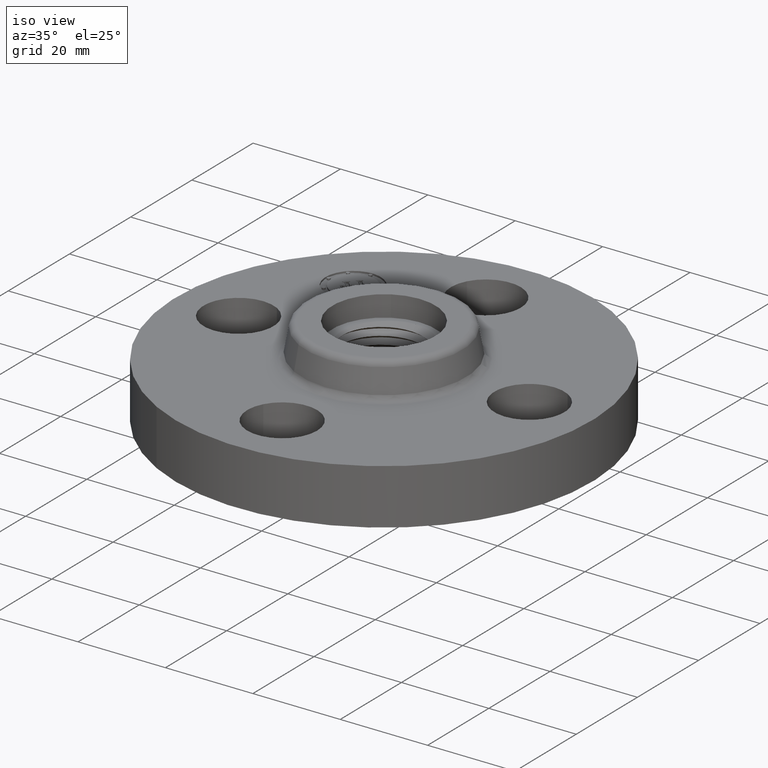
[diagram: clean part render]
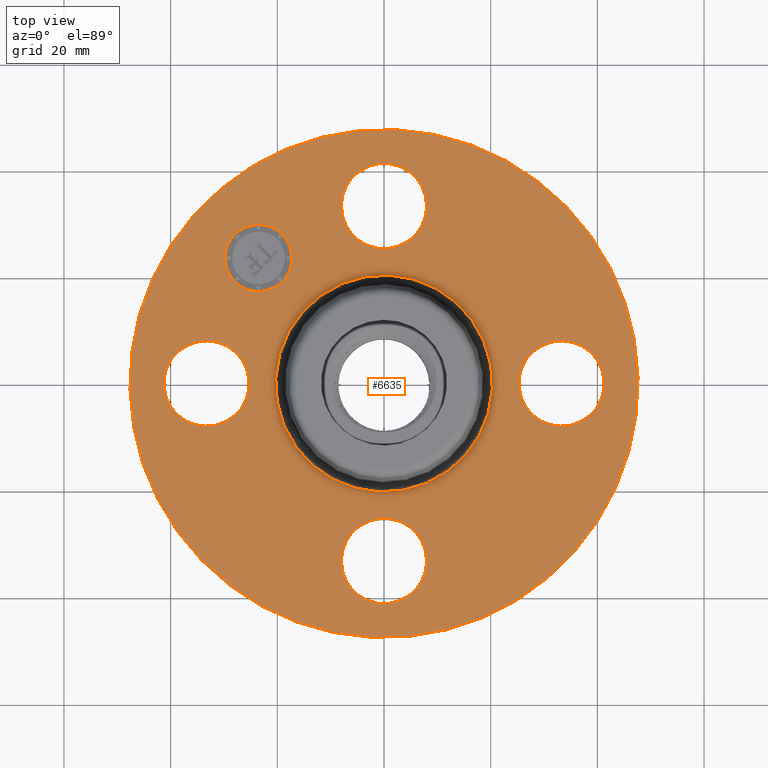
[diagram: tour spotlight — one face highlighted and labeled with its STEP entity id]
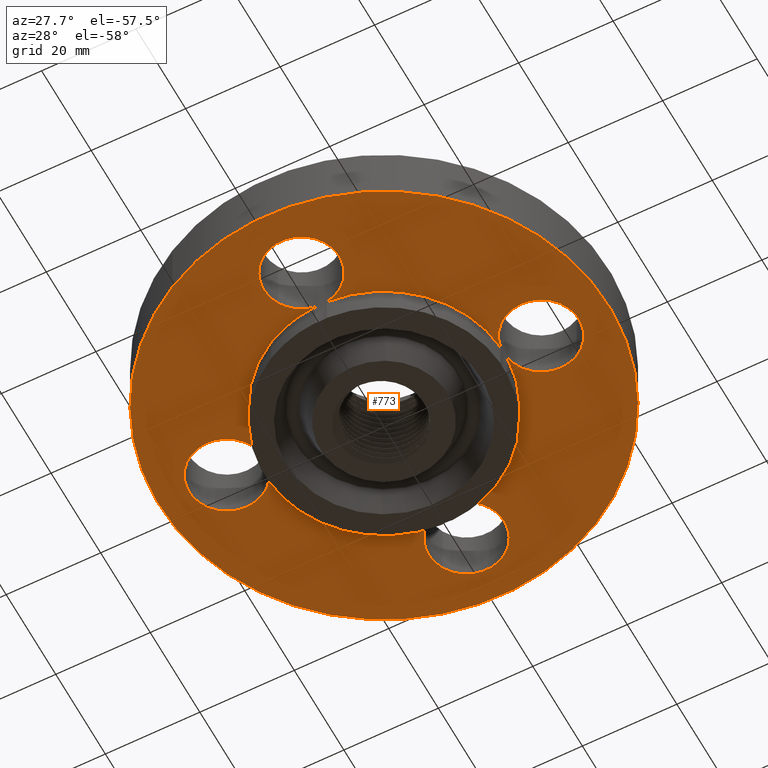
[diagram: tour spotlight — one face highlighted and labeled with its STEP entity id]
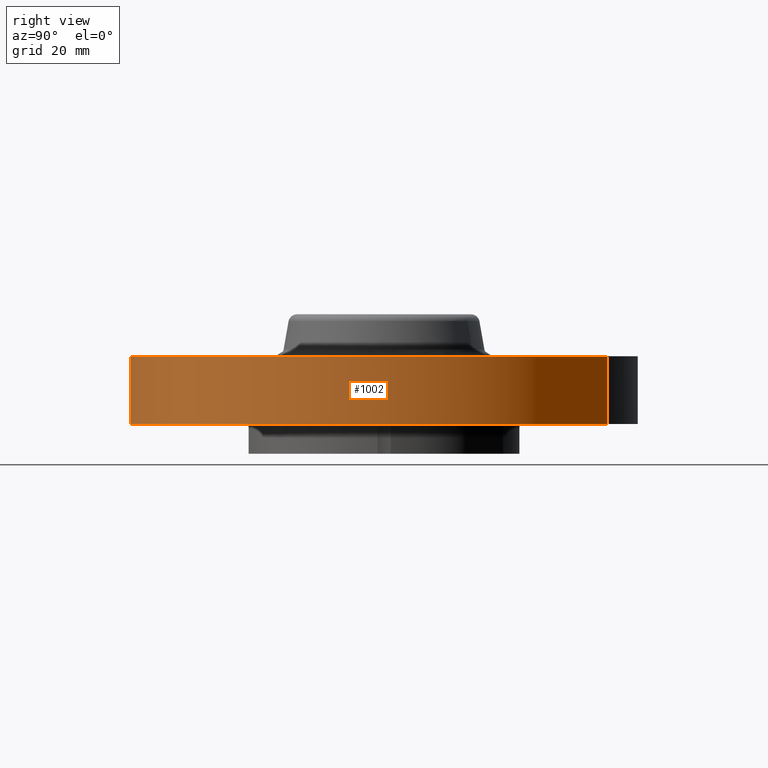
[diagram: tour spotlight — one face highlighted and labeled with its STEP entity id]
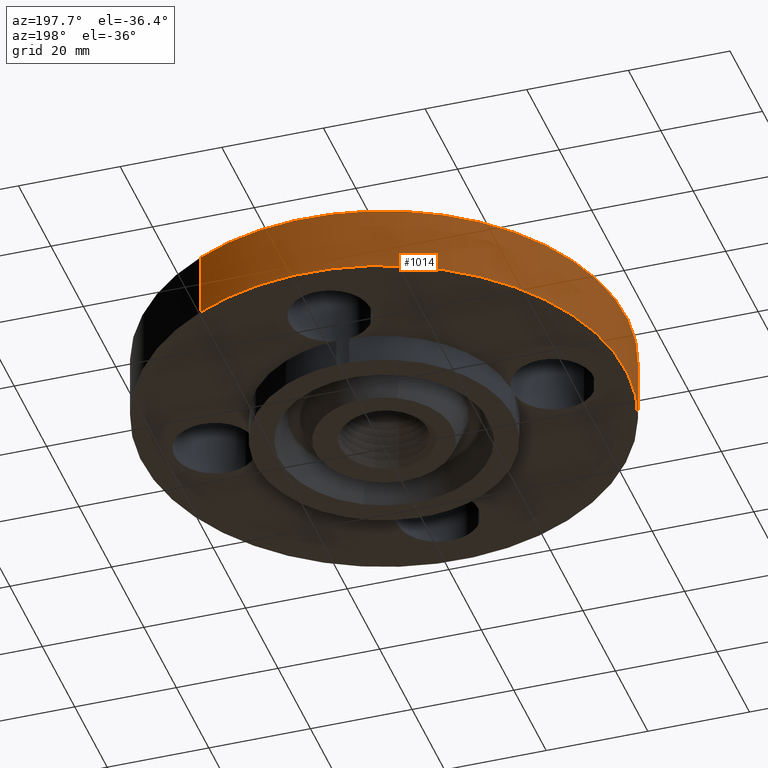
[diagram: tour spotlight — one face highlighted and labeled with its STEP entity id]
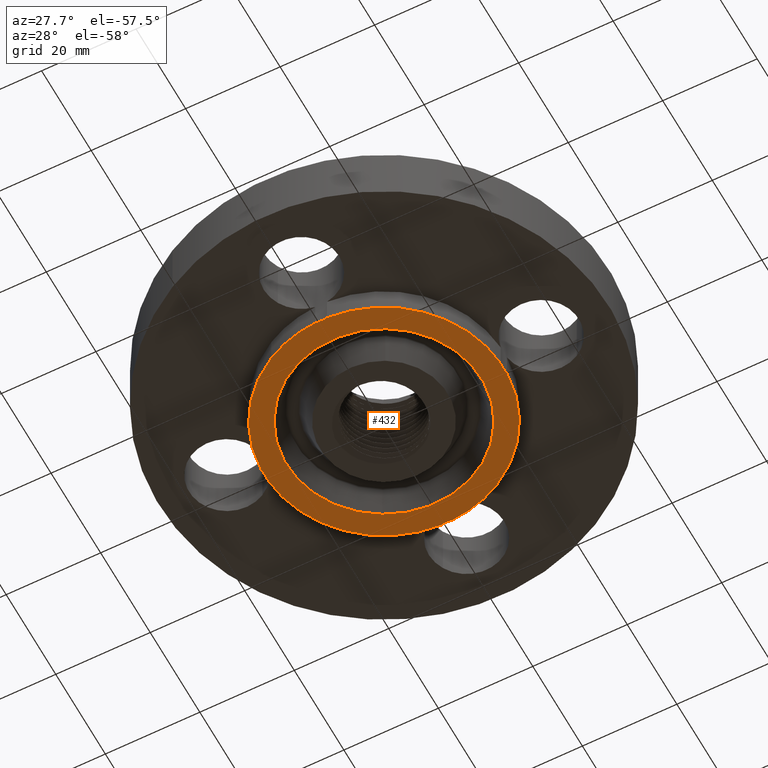
[diagram: tour spotlight — one face highlighted and labeled with its STEP entity id]
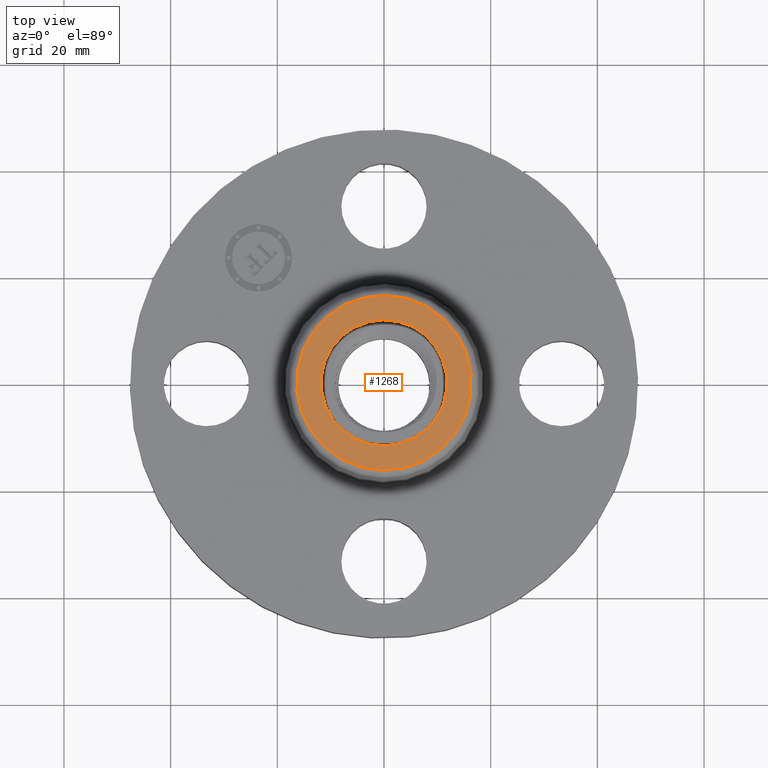
[diagram: tour spotlight — one face highlighted and labeled with its STEP entity id]
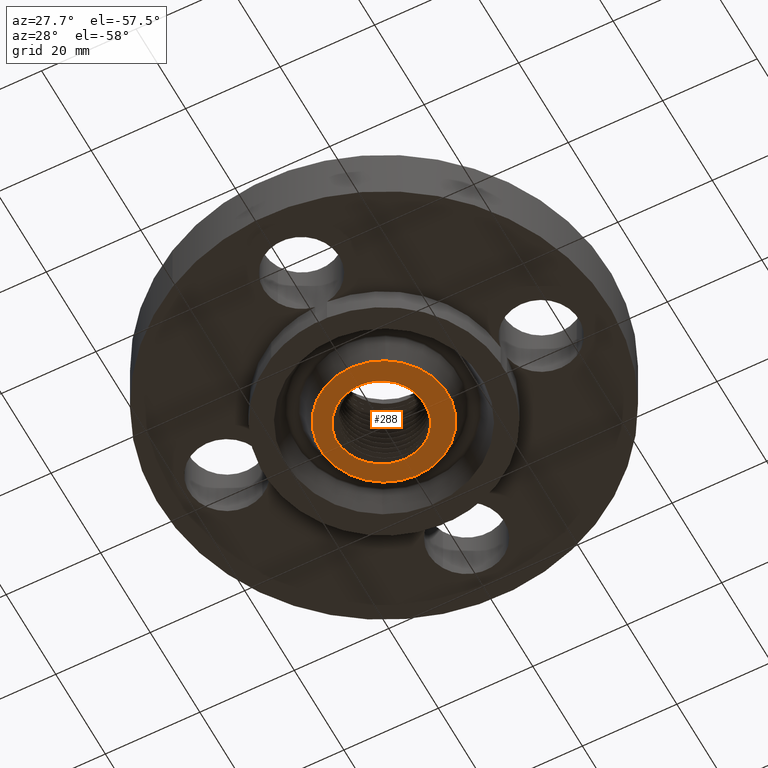
[diagram: tour spotlight — one face highlighted and labeled with its STEP entity id]
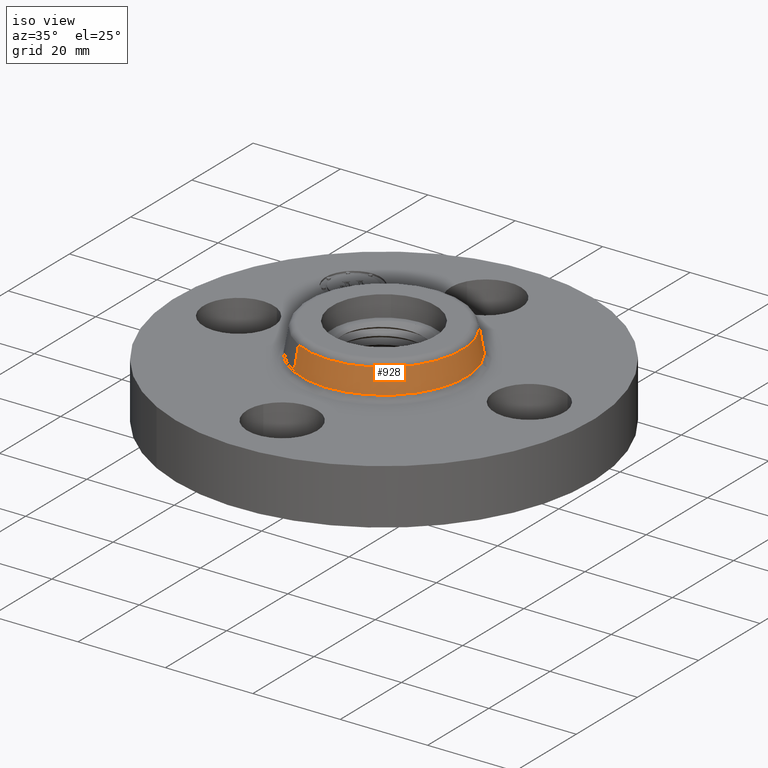
[diagram: tour spotlight — one face highlighted and labeled with its STEP entity id]
A machine part: a face-by-face anatomy tour. The part has 547 B-rep faces; the first image is the clean iso view, then the 8 largest visible faces are spotlighted one at a time (largest first), each with its STEP entity span.

Face 1 — top view, entity #6635. In plain terms, the highlighted planar face has unit normal (0, 0, -1).
Definition (entity closure, byte-faithful):
#482=AXIS2_PLACEMENT_3D('Circle Axis2P3D',#480,#481,$) ;
#503=AXIS2_PLACEMENT_3D('Circle Axis2P3D',#501,#502,$) ;
#562=AXIS2_PLACEMENT_3D('Circle Axis2P3D',#560,#561,$) ;
#583=AXIS2_PLACEMENT_3D('Circle Axis2P3D',#581,#582,$) ;
#642=AXIS2_PLACEMENT_3D('Circle Axis2P3D',#640,#641,$) ;
#663=AXIS2_PLACEMENT_3D('Circle Axis2P3D',#661,#662,$) ;
#936=AXIS2_PLACEMENT_3D('Circle Axis2P3D',#934,#935,$) ;
#962=AXIS2_PLACEMENT_3D('Circle Axis2P3D',#960,#961,$) ;
#986=AXIS2_PLACEMENT_3D('Circle Axis2P3D',#984,#985,$) ;
#1005=AXIS2_PLACEMENT_3D('Circle Axis2P3D',#1003,#1004,$) ;
#1048=AXIS2_PLACEMENT_3D('Circle Axis2P3D',#1046,#1047,$) ;
#1064=AXIS2_PLACEMENT_3D('Circle Axis2P3D',#1062,#1063,$) ;
#6591=AXIS2_PLACEMENT_3D('Plane Axis2P3D',#6588,#6589,#6590) ;
#6619=AXIS2_PLACEMENT_3D('Circle Axis2P3D',#6617,#6618,$) ;
#6628=AXIS2_PLACEMENT_3D('Circle Axis2P3D',#6626,#6627,$) ;
#444=CARTESIAN_POINT('Vertex',(-1.15898095534,0.276438506997,0.500000000002)) ;
#477=CARTESIAN_POINT('Vertex',(-1.46101904467,-0.276438506997,0.500000000002)) ;
#480=CARTESIAN_POINT('Axis2P3D Location',(-1.31000000001,-2.40643096033E-016,0.500000000002)) ;
#501=CARTESIAN_POINT('Axis2P3D Location',(-1.31000000001,-2.40643096033E-016,0.500000000002)) ;
#524=CARTESIAN_POINT('Vertex',(-0.276438506997,-1.15898095534,0.500000000002)) ;
#557=CARTESIAN_POINT('Vertex',(0.276438506997,-1.46101904467,0.500000000002)) ;
#560=CARTESIAN_POINT('Axis2P3D Location',(1.60428730689E-016,-1.31000000001,0.500000000002)) ;
#581=CARTESIAN_POINT('Axis2P3D Location',(1.60428730689E-016,-1.31000000001,0.500000000002)) ;
#604=CARTESIAN_POINT('Vertex',(1.15898095534,-0.276438506997,0.500000000002)) ;
#637=CARTESIAN_POINT('Vertex',(1.46101904467,0.276438506997,0.500000000002)) ;
#640=CARTESIAN_POINT('Axis2P3D Location',(1.31000000001,8.02143653445E-017,0.500000000002)) ;
#661=CARTESIAN_POINT('Axis2P3D Location',(1.31000000001,8.02143653445E-017,0.500000000002)) ;
#934=CARTESIAN_POINT('Axis2P3D Location',(0.,0.,0.500000000002)) ;
#938=CARTESIAN_POINT('Vertex',(-0.383706301512,-0.702369673661,0.500000000002)) ;
#940=CARTESIAN_POINT('Vertex',(0.383706301512,0.702369673661,0.500000000002)) ;
#960=CARTESIAN_POINT('Axis2P3D Location',(0.,0.,0.500000000002)) ;
#981=CARTESIAN_POINT('Vertex',(0.898922884886,1.64546730355,0.500000000002)) ;
#984=CARTESIAN_POINT('Axis2P3D Location',(0.,0.,0.500000000002)) ;
#988=CARTESIAN_POINT('Vertex',(-0.898922884886,-1.64546730355,0.500000000002)) ;
#1003=CARTESIAN_POINT('Axis2P3D Location',(0.,0.,0.500000000002)) ;
#1036=CARTESIAN_POINT('Vertex',(0.276438506997,1.15898095534,0.500000000002)) ;
#1043=CARTESIAN_POINT('Vertex',(-0.276438506997,1.46101904467,0.500000000002)) ;
#1046=CARTESIAN_POINT('Axis2P3D Location',(0.,1.31000000001,0.500000000002)) ;
#1062=CARTESIAN_POINT('Axis2P3D Location',(0.,1.31000000001,0.500000000002)) ;
#6588=CARTESIAN_POINT('Axis2P3D Location',(0.,1.87500000001,0.500000000002)) ;
#6617=CARTESIAN_POINT('Axis2P3D Location',(-0.926309883358,0.926309883358,0.500000000002)) ;
#6621=CARTESIAN_POINT('Vertex',(-1.1013188117,0.751300955014,0.500000000002)) ;
#6623=CARTESIAN_POINT('Vertex',(-0.751300955014,1.1013188117,0.500000000002)) ;
#6626=CARTESIAN_POINT('Axis2P3D Location',(-0.926309883358,0.926309883358,0.500000000002)) ;
#481=DIRECTION('Axis2P3D Direction',(0.,0.,-0.0393700787402)) ;
#502=DIRECTION('Axis2P3D Direction',(0.,0.,-0.0393700787402)) ;
#561=DIRECTION('Axis2P3D Direction',(-0.,0.,-0.0393700787402)) ;
#582=DIRECTION('Axis2P3D Direction',(-0.,0.,-0.0393700787402)) ;
#641=DIRECTION('Axis2P3D Direction',(0.,-0.,-0.0393700787402)) ;
#662=DIRECTION('Axis2P3D Direction',(0.,-0.,-0.0393700787402)) ;
#935=DIRECTION('Axis2P3D Direction',(0.,0.,-0.0393700787402)) ;
#961=DIRECTION('Axis2P3D Direction',(0.,0.,-0.0393700787402)) ;
#985=DIRECTION('Axis2P3D Direction',(0.,0.,-0.0393700787402)) ;
#1004=DIRECTION('Axis2P3D Direction',(0.,0.,-0.0393700787402)) ;
#1047=DIRECTION('Axis2P3D Direction',(0.,-0.,-0.0393700787402)) ;
#1063=DIRECTION('Axis2P3D Direction',(0.,-0.,-0.0393700787402)) ;
#6589=DIRECTION('Axis2P3D Direction',(0.,0.,-0.0393700787402)) ;
#6590=DIRECTION('Axis2P3D XDirection',(0.0393700787402,0.,0.)) ;
#6618=DIRECTION('Axis2P3D Direction',(0.,0.,-0.0393700787402)) ;
#6627=DIRECTION('Axis2P3D Direction',(0.,0.,-0.0393700787402)) ;
#6594=ORIENTED_EDGE('',*,*,#990,.F.) ;
#6595=ORIENTED_EDGE('',*,*,#1007,.F.) ;
#6598=ORIENTED_EDGE('',*,*,#1066,.T.) ;
#6599=ORIENTED_EDGE('',*,*,#1050,.T.) ;
#6602=ORIENTED_EDGE('',*,*,#942,.T.) ;
#6603=ORIENTED_EDGE('',*,*,#964,.T.) ;
#6606=ORIENTED_EDGE('',*,*,#644,.T.) ;
#6607=ORIENTED_EDGE('',*,*,#665,.T.) ;
#6610=ORIENTED_EDGE('',*,*,#564,.T.) ;
#6611=ORIENTED_EDGE('',*,*,#585,.T.) ;
#6614=ORIENTED_EDGE('',*,*,#484,.T.) ;
#6615=ORIENTED_EDGE('',*,*,#505,.T.) ;
#6632=ORIENTED_EDGE('',*,*,#6625,.T.) ;
#6633=ORIENTED_EDGE('',*,*,#6630,.T.) ;
#6600=FACE_BOUND('',#6597,.T.) ;
#6604=FACE_BOUND('',#6601,.T.) ;
#6608=FACE_BOUND('',#6605,.T.) ;
#6612=FACE_BOUND('',#6609,.T.) ;
#6616=FACE_BOUND('',#6613,.T.) ;
#6634=FACE_BOUND('',#6631,.T.) ;
#6635=ADVANCED_FACE('PartBody',(#6596,#6600,#6604,#6608,#6612,#6616,#6634),#6592,.F.) ;
#483=CIRCLE('generated circle',#482,0.315000000001) ;
#504=CIRCLE('generated circle',#503,0.315000000001) ;
#563=CIRCLE('generated circle',#562,0.315000000001) ;
#584=CIRCLE('generated circle',#583,0.315000000001) ;
#643=CIRCLE('generated circle',#642,0.315000000001) ;
#664=CIRCLE('generated circle',#663,0.315000000001) ;
#937=CIRCLE('generated circle',#936,0.800345977874) ;
#963=CIRCLE('generated circle',#962,0.800345977874) ;
#987=CIRCLE('generated circle',#986,1.87500000001) ;
#1006=CIRCLE('generated circle',#1005,1.87500000001) ;
#1049=CIRCLE('generated circle',#1048,0.315000000001) ;
#1065=CIRCLE('generated circle',#1064,0.315000000001) ;
#6620=CIRCLE('generated circle',#6619,0.247500000001) ;
#6629=CIRCLE('generated circle',#6628,0.247500000001) ;
#484=EDGE_CURVE('',#445,#478,#483,.T.) ;
#505=EDGE_CURVE('',#478,#445,#504,.T.) ;
#564=EDGE_CURVE('',#525,#558,#563,.T.) ;
#585=EDGE_CURVE('',#558,#525,#584,.T.) ;
#644=EDGE_CURVE('',#605,#638,#643,.T.) ;
#665=EDGE_CURVE('',#638,#605,#664,.T.) ;
#942=EDGE_CURVE('',#939,#941,#937,.T.) ;
#964=EDGE_CURVE('',#941,#939,#963,.T.) ;
#990=EDGE_CURVE('',#982,#989,#987,.T.) ;
#1007=EDGE_CURVE('',#989,#982,#1006,.T.) ;
#1050=EDGE_CURVE('',#1037,#1044,#1049,.T.) ;
#1066=EDGE_CURVE('',#1044,#1037,#1065,.T.) ;
#6625=EDGE_CURVE('',#6622,#6624,#6620,.T.) ;
#6630=EDGE_CURVE('',#6624,#6622,#6629,.T.) ;
#6593=EDGE_LOOP('',(#6594,#6595)) ;
#6597=EDGE_LOOP('',(#6598,#6599)) ;
#6601=EDGE_LOOP('',(#6602,#6603)) ;
#6605=EDGE_LOOP('',(#6606,#6607)) ;
#6609=EDGE_LOOP('',(#6610,#6611)) ;
#6613=EDGE_LOOP('',(#6614,#6615)) ;
#6631=EDGE_LOOP('',(#6632,#6633)) ;
#6596=FACE_OUTER_BOUND('',#6593,.T.) ;
#6592=PLANE('',#6591) ;
#445=VERTEX_POINT('',#444) ;
#478=VERTEX_POINT('',#477) ;
#525=VERTEX_POINT('',#524) ;
#558=VERTEX_POINT('',#557) ;
#605=VERTEX_POINT('',#604) ;
#638=VERTEX_POINT('',#637) ;
#939=VERTEX_POINT('',#938) ;
#941=VERTEX_POINT('',#940) ;
#982=VERTEX_POINT('',#981) ;
#989=VERTEX_POINT('',#988) ;
#1037=VERTEX_POINT('',#1036) ;
#1044=VERTEX_POINT('',#1043) ;
#6622=VERTEX_POINT('',#6621) ;
#6624=VERTEX_POINT('',#6623) ;

Face 2 — auxiliary view, entity #773. In plain terms, the highlighted planar face has unit normal (0, 0, -1).
Definition (entity closure, byte-faithful):
#449=AXIS2_PLACEMENT_3D('Circle Axis2P3D',#447,#448,$) ;
#468=AXIS2_PLACEMENT_3D('Circle Axis2P3D',#466,#467,$) ;
#498=AXIS2_PLACEMENT_3D('Circle Axis2P3D',#496,#497,$) ;
#529=AXIS2_PLACEMENT_3D('Circle Axis2P3D',#527,#528,$) ;
#548=AXIS2_PLACEMENT_3D('Circle Axis2P3D',#546,#547,$) ;
#578=AXIS2_PLACEMENT_3D('Circle Axis2P3D',#576,#577,$) ;
#609=AXIS2_PLACEMENT_3D('Circle Axis2P3D',#607,#608,$) ;
#628=AXIS2_PLACEMENT_3D('Circle Axis2P3D',#626,#627,$) ;
#658=AXIS2_PLACEMENT_3D('Circle Axis2P3D',#656,#657,$) ;
#676=AXIS2_PLACEMENT_3D('Plane Axis2P3D',#673,#674,#675) ;
#680=AXIS2_PLACEMENT_3D('Circle Axis2P3D',#678,#679,$) ;
#689=AXIS2_PLACEMENT_3D('Circle Axis2P3D',#687,#688,$) ;
#698=AXIS2_PLACEMENT_3D('Circle Axis2P3D',#696,#697,$) ;
#703=AXIS2_PLACEMENT_3D('Circle Axis2P3D',#701,#702,$) ;
#710=AXIS2_PLACEMENT_3D('Circle Axis2P3D',#708,#709,$) ;
#717=AXIS2_PLACEMENT_3D('Circle Axis2P3D',#715,#716,$) ;
#724=AXIS2_PLACEMENT_3D('Circle Axis2P3D',#722,#723,$) ;
#731=AXIS2_PLACEMENT_3D('Circle Axis2P3D',#729,#730,$) ;
#738=AXIS2_PLACEMENT_3D('Circle Axis2P3D',#736,#737,$) ;
#743=AXIS2_PLACEMENT_3D('Circle Axis2P3D',#741,#742,$) ;
#750=AXIS2_PLACEMENT_3D('Circle Axis2P3D',#748,#749,$) ;
#442=CARTESIAN_POINT('Vertex',(-1.15898095534,0.276438506997,0.)) ;
#447=CARTESIAN_POINT('Axis2P3D Location',(-1.31000000001,-2.40643096033E-016,0.)) ;
#451=CARTESIAN_POINT('Vertex',(-0.998807251912,0.0488269754871,0.)) ;
#463=CARTESIAN_POINT('Vertex',(-0.998807251912,-0.0488269754871,0.)) ;
#466=CARTESIAN_POINT('Axis2P3D Location',(-1.31000000001,-2.40643096033E-016,0.)) ;
#470=CARTESIAN_POINT('Vertex',(-1.46101904467,-0.276438506997,0.)) ;
#496=CARTESIAN_POINT('Axis2P3D Location',(-1.31000000001,-2.40643096033E-016,0.)) ;
#522=CARTESIAN_POINT('Vertex',(-0.276438506997,-1.15898095534,0.)) ;
#527=CARTESIAN_POINT('Axis2P3D Location',(1.60428730689E-016,-1.31000000001,0.)) ;
#531=CARTESIAN_POINT('Vertex',(-0.0488269754871,-0.998807251912,0.)) ;
#543=CARTESIAN_POINT('Vertex',(0.0488269754871,-0.998807251912,0.)) ;
#546=CARTESIAN_POINT('Axis2P3D Location',(1.60428730689E-016,-1.31000000001,0.)) ;
#550=CARTESIAN_POINT('Vertex',(0.276438506997,-1.46101904467,0.)) ;
#576=CARTESIAN_POINT('Axis2P3D Location',(1.60428730689E-016,-1.31000000001,0.)) ;
#602=CARTESIAN_POINT('Vertex',(1.15898095534,-0.276438506997,0.)) ;
#607=CARTESIAN_POINT('Axis2P3D Location',(1.31000000001,8.02143653445E-017,0.)) ;
#611=CARTESIAN_POINT('Vertex',(0.998807251912,-0.0488269754871,0.)) ;
#623=CARTESIAN_POINT('Vertex',(0.998807251912,0.0488269754871,0.)) ;
#626=CARTESIAN_POINT('Axis2P3D Location',(1.31000000001,8.02143653445E-017,0.)) ;
#630=CARTESIAN_POINT('Vertex',(1.46101904467,0.276438506997,0.)) ;
#656=CARTESIAN_POINT('Axis2P3D Location',(1.31000000001,8.02143653445E-017,0.)) ;
#673=CARTESIAN_POINT('Axis2P3D Location',(0.,1.,0.)) ;
#678=CARTESIAN_POINT('Axis2P3D Location',(0.,0.,0.)) ;
#682=CARTESIAN_POINT('Vertex',(-0.898922884886,-1.64546730355,1.39870617276E-016)) ;
#684=CARTESIAN_POINT('Vertex',(0.898922884886,1.64546730355,1.39870617276E-016)) ;
#687=CARTESIAN_POINT('Axis2P3D Location',(0.,0.,0.)) ;
#696=CARTESIAN_POINT('Axis2P3D Location',(0.,0.,0.)) ;
#701=CARTESIAN_POINT('Axis2P3D Location',(0.,0.,0.)) ;
#705=CARTESIAN_POINT('Vertex',(0.479425538606,0.877582561894,-3.49676543189E-017)) ;
#708=CARTESIAN_POINT('Axis2P3D Location',(0.,0.,0.)) ;
#712=CARTESIAN_POINT('Vertex',(0.0488269754871,0.998807251912,0.)) ;
#715=CARTESIAN_POINT('Axis2P3D Location',(-8.74191357973E-018,1.31000000001,0.)) ;
#719=CARTESIAN_POINT('Vertex',(0.276438506997,1.15898095534,0.)) ;
#722=CARTESIAN_POINT('Axis2P3D Location',(-1.74838271595E-017,1.31000000001,0.)) ;
#726=CARTESIAN_POINT('Vertex',(-0.276438506997,1.46101904467,0.)) ;
#729=CARTESIAN_POINT('Axis2P3D Location',(-8.74191357973E-018,1.31000000001,0.)) ;
#733=CARTESIAN_POINT('Vertex',(-0.0488269754871,0.998807251912,0.)) ;
#736=CARTESIAN_POINT('Axis2P3D Location',(0.,0.,0.)) ;
#741=CARTESIAN_POINT('Axis2P3D Location',(0.,0.,0.)) ;
#745=CARTESIAN_POINT('Vertex',(-0.479425538606,-0.877582561894,-3.49676543189E-017)) ;
#748=CARTESIAN_POINT('Axis2P3D Location',(0.,0.,0.)) ;
#448=DIRECTION('Axis2P3D Direction',(0.,0.,-0.0393700787402)) ;
#467=DIRECTION('Axis2P3D Direction',(0.,0.,-0.0393700787402)) ;
#497=DIRECTION('Axis2P3D Direction',(0.,0.,-0.0393700787402)) ;
#528=DIRECTION('Axis2P3D Direction',(-0.,0.,-0.0393700787402)) ;
#547=DIRECTION('Axis2P3D Direction',(-0.,0.,-0.0393700787402)) ;
#577=DIRECTION('Axis2P3D Direction',(-0.,0.,-0.0393700787402)) ;
#608=DIRECTION('Axis2P3D Direction',(0.,-0.,-0.0393700787402)) ;
#627=DIRECTION('Axis2P3D Direction',(0.,-0.,-0.0393700787402)) ;
#657=DIRECTION('Axis2P3D Direction',(0.,-0.,-0.0393700787402)) ;
#674=DIRECTION('Axis2P3D Direction',(0.,0.,-0.0393700787402)) ;
#675=DIRECTION('Axis2P3D XDirection',(0.0393700787402,0.,0.)) ;
#679=DIRECTION('Axis2P3D Direction',(0.,0.,-0.0393700787402)) ;
#688=DIRECTION('Axis2P3D Direction',(0.,0.,-0.0393700787402)) ;
#697=DIRECTION('Axis2P3D Direction',(0.,0.,-0.0393700787402)) ;
#702=DIRECTION('Axis2P3D Direction',(0.,0.,-0.0393700787402)) ;
#709=DIRECTION('Axis2P3D Direction',(0.,0.,-0.0393700787402)) ;
#716=DIRECTION('Axis2P3D Direction',(0.,0.,-0.0393700787402)) ;
#723=DIRECTION('Axis2P3D Direction',(0.,0.,-0.0393700787402)) ;
#730=DIRECTION('Axis2P3D Direction',(0.,0.,-0.0393700787402)) ;
#737=DIRECTION('Axis2P3D Direction',(0.,0.,-0.0393700787402)) ;
#742=DIRECTION('Axis2P3D Direction',(0.,0.,-0.0393700787402)) ;
#749=DIRECTION('Axis2P3D Direction',(0.,0.,-0.0393700787402)) ;
#693=ORIENTED_EDGE('',*,*,#686,.T.) ;
#694=ORIENTED_EDGE('',*,*,#691,.T.) ;
#754=ORIENTED_EDGE('',*,*,#700,.F.) ;
#755=ORIENTED_EDGE('',*,*,#613,.F.) ;
#756=ORIENTED_EDGE('',*,*,#660,.F.) ;
#757=ORIENTED_EDGE('',*,*,#632,.F.) ;
#758=ORIENTED_EDGE('',*,*,#707,.F.) ;
#759=ORIENTED_EDGE('',*,*,#714,.F.) ;
#760=ORIENTED_EDGE('',*,*,#721,.F.) ;
#761=ORIENTED_EDGE('',*,*,#728,.F.) ;
#762=ORIENTED_EDGE('',*,*,#735,.F.) ;
#763=ORIENTED_EDGE('',*,*,#740,.F.) ;
#764=ORIENTED_EDGE('',*,*,#453,.F.) ;
#765=ORIENTED_EDGE('',*,*,#500,.F.) ;
#766=ORIENTED_EDGE('',*,*,#472,.F.) ;
#767=ORIENTED_EDGE('',*,*,#747,.F.) ;
#768=ORIENTED_EDGE('',*,*,#752,.F.) ;
#769=ORIENTED_EDGE('',*,*,#533,.F.) ;
#770=ORIENTED_EDGE('',*,*,#580,.F.) ;
#771=ORIENTED_EDGE('',*,*,#552,.F.) ;
#772=FACE_BOUND('',#753,.T.) ;
#773=ADVANCED_FACE('PartBody',(#695,#772),#677,.T.) ;
#450=CIRCLE('generated circle',#449,0.315000000001) ;
#469=CIRCLE('generated circle',#468,0.315000000001) ;
#499=CIRCLE('generated circle',#498,0.315000000001) ;
#530=CIRCLE('generated circle',#529,0.315000000001) ;
#549=CIRCLE('generated circle',#548,0.315000000001) ;
#579=CIRCLE('generated circle',#578,0.315000000001) ;
#610=CIRCLE('generated circle',#609,0.315000000001) ;
#629=CIRCLE('generated circle',#628,0.315000000001) ;
#659=CIRCLE('generated circle',#658,0.315000000001) ;
#681=CIRCLE('generated circle',#680,1.87500000001) ;
#690=CIRCLE('generated circle',#689,1.87500000001) ;
#699=CIRCLE('generated circle',#698,1.) ;
#704=CIRCLE('generated circle',#703,1.) ;
#711=CIRCLE('generated circle',#710,1.) ;
#718=CIRCLE('generated circle',#717,0.315000000001) ;
#725=CIRCLE('generated circle',#724,0.315000000001) ;
#732=CIRCLE('generated circle',#731,0.315000000001) ;
#739=CIRCLE('generated circle',#738,1.) ;
#744=CIRCLE('generated circle',#743,1.) ;
#751=CIRCLE('generated circle',#750,1.) ;
#453=EDGE_CURVE('',#443,#452,#450,.T.) ;
#472=EDGE_CURVE('',#464,#471,#469,.T.) ;
#500=EDGE_CURVE('',#471,#443,#499,.T.) ;
#533=EDGE_CURVE('',#523,#532,#530,.T.) ;
#552=EDGE_CURVE('',#544,#551,#549,.T.) ;
#580=EDGE_CURVE('',#551,#523,#579,.T.) ;
#613=EDGE_CURVE('',#603,#612,#610,.T.) ;
#632=EDGE_CURVE('',#624,#631,#629,.T.) ;
#660=EDGE_CURVE('',#631,#603,#659,.T.) ;
#686=EDGE_CURVE('',#683,#685,#681,.T.) ;
#691=EDGE_CURVE('',#685,#683,#690,.T.) ;
#700=EDGE_CURVE('',#612,#544,#699,.T.) ;
#707=EDGE_CURVE('',#706,#624,#704,.T.) ;
#714=EDGE_CURVE('',#713,#706,#711,.T.) ;
#721=EDGE_CURVE('',#720,#713,#718,.T.) ;
#728=EDGE_CURVE('',#727,#720,#725,.T.) ;
#735=EDGE_CURVE('',#734,#727,#732,.T.) ;
#740=EDGE_CURVE('',#452,#734,#739,.T.) ;
#747=EDGE_CURVE('',#746,#464,#744,.T.) ;
#752=EDGE_CURVE('',#532,#746,#751,.T.) ;
#692=EDGE_LOOP('',(#693,#694)) ;
#753=EDGE_LOOP('',(#754,#755,#756,#757,#758,#759,#760,#761,#762,#763,#764,#765,#766,#767,#768,#769,#770,#771)) ;
#695=FACE_OUTER_BOUND('',#692,.T.) ;
#677=PLANE('',#676) ;
#443=VERTEX_POINT('',#442) ;
#452=VERTEX_POINT('',#451) ;
#464=VERTEX_POINT('',#463) ;
#471=VERTEX_POINT('',#470) ;
#523=VERTEX_POINT('',#522) ;
#532=VERTEX_POINT('',#531) ;
#544=VERTEX_POINT('',#543) ;
#551=VERTEX_POINT('',#550) ;
#603=VERTEX_POINT('',#602) ;
#612=VERTEX_POINT('',#611) ;
#624=VERTEX_POINT('',#623) ;
#631=VERTEX_POINT('',#630) ;
#683=VERTEX_POINT('',#682) ;
#685=VERTEX_POINT('',#684) ;
#706=VERTEX_POINT('',#705) ;
#713=VERTEX_POINT('',#712) ;
#720=VERTEX_POINT('',#719) ;
#727=VERTEX_POINT('',#726) ;
#734=VERTEX_POINT('',#733) ;
#746=VERTEX_POINT('',#745) ;

Face 3 — right view, entity #1002. In plain terms, the highlighted cylindrical surface (partial cylindrical patch) has radius 47.625 mm, axis along (0, 0, -1).
Definition (entity closure, byte-faithful):
#689=AXIS2_PLACEMENT_3D('Circle Axis2P3D',#687,#688,$) ;
#975=AXIS2_PLACEMENT_3D('Cylinder Axis2P3D',#972,#973,#974) ;
#986=AXIS2_PLACEMENT_3D('Circle Axis2P3D',#984,#985,$) ;
#682=CARTESIAN_POINT('Vertex',(-0.898922884886,-1.64546730355,1.39870617276E-016)) ;
#684=CARTESIAN_POINT('Vertex',(0.898922884886,1.64546730355,1.39870617276E-016)) ;
#687=CARTESIAN_POINT('Axis2P3D Location',(0.,0.,0.)) ;
#972=CARTESIAN_POINT('Axis2P3D Location',(0.,0.,0.295600000001)) ;
#977=CARTESIAN_POINT('Line Origine',(0.898922884886,1.64546730355,0.250000000001)) ;
#981=CARTESIAN_POINT('Vertex',(0.898922884886,1.64546730355,0.500000000002)) ;
#984=CARTESIAN_POINT('Axis2P3D Location',(0.,0.,0.500000000002)) ;
#988=CARTESIAN_POINT('Vertex',(-0.898922884886,-1.64546730355,0.500000000002)) ;
#991=CARTESIAN_POINT('Line Origine',(-0.898922884886,-1.64546730355,0.250000000001)) ;
#688=DIRECTION('Axis2P3D Direction',(0.,0.,-0.0393700787402)) ;
#973=DIRECTION('Axis2P3D Direction',(0.,0.,-0.0393700787402)) ;
#974=DIRECTION('Axis2P3D XDirection',(-0.0188750212049,-0.0345504945626,0.)) ;
#978=DIRECTION('Vector Direction',(0.,0.,-0.0393700787402)) ;
#985=DIRECTION('Axis2P3D Direction',(0.,0.,-0.0393700787402)) ;
#992=DIRECTION('Vector Direction',(0.,0.,-0.0393700787402)) ;
#979=VECTOR('Line Direction',#978,0.0393700787402) ;
#993=VECTOR('Line Direction',#992,0.0393700787402) ;
#997=ORIENTED_EDGE('',*,*,#691,.F.) ;
#998=ORIENTED_EDGE('',*,*,#983,.T.) ;
#999=ORIENTED_EDGE('',*,*,#990,.T.) ;
#1000=ORIENTED_EDGE('',*,*,#995,.F.) ;
#1002=ADVANCED_FACE('PartBody',(#1001),#976,.T.) ;
#690=CIRCLE('generated circle',#689,1.87500000001) ;
#987=CIRCLE('generated circle',#986,1.87500000001) ;
#976=CYLINDRICAL_SURFACE('generated cylinder',#975,1.87500000001) ;
#691=EDGE_CURVE('',#685,#683,#690,.T.) ;
#983=EDGE_CURVE('',#685,#982,#980,.F.) ;
#990=EDGE_CURVE('',#982,#989,#987,.T.) ;
#995=EDGE_CURVE('',#683,#989,#994,.F.) ;
#996=EDGE_LOOP('',(#997,#998,#999,#1000)) ;
#1001=FACE_OUTER_BOUND('',#996,.T.) ;
#980=LINE('Line',#977,#979) ;
#994=LINE('Line',#991,#993) ;
#683=VERTEX_POINT('',#682) ;
#685=VERTEX_POINT('',#684) ;
#982=VERTEX_POINT('',#981) ;
#989=VERTEX_POINT('',#988) ;

Face 4 — auxiliary view, entity #1014. In plain terms, the highlighted cylindrical surface (partial cylindrical patch) has radius 47.625 mm, axis along (0, 0, -1).
Definition (entity closure, byte-faithful):
#680=AXIS2_PLACEMENT_3D('Circle Axis2P3D',#678,#679,$) ;
#975=AXIS2_PLACEMENT_3D('Cylinder Axis2P3D',#972,#973,#974) ;
#1005=AXIS2_PLACEMENT_3D('Circle Axis2P3D',#1003,#1004,$) ;
#678=CARTESIAN_POINT('Axis2P3D Location',(0.,0.,0.)) ;
#682=CARTESIAN_POINT('Vertex',(-0.898922884886,-1.64546730355,1.39870617276E-016)) ;
#684=CARTESIAN_POINT('Vertex',(0.898922884886,1.64546730355,1.39870617276E-016)) ;
#972=CARTESIAN_POINT('Axis2P3D Location',(0.,0.,0.295600000001)) ;
#977=CARTESIAN_POINT('Line Origine',(0.898922884886,1.64546730355,0.250000000001)) ;
#981=CARTESIAN_POINT('Vertex',(0.898922884886,1.64546730355,0.500000000002)) ;
#988=CARTESIAN_POINT('Vertex',(-0.898922884886,-1.64546730355,0.500000000002)) ;
#991=CARTESIAN_POINT('Line Origine',(-0.898922884886,-1.64546730355,0.250000000001)) ;
#1003=CARTESIAN_POINT('Axis2P3D Location',(0.,0.,0.500000000002)) ;
#679=DIRECTION('Axis2P3D Direction',(0.,0.,-0.0393700787402)) ;
#973=DIRECTION('Axis2P3D Direction',(0.,0.,-0.0393700787402)) ;
#974=DIRECTION('Axis2P3D XDirection',(-0.0188750212049,-0.0345504945626,0.)) ;
#978=DIRECTION('Vector Direction',(0.,0.,-0.0393700787402)) ;
#992=DIRECTION('Vector Direction',(0.,0.,-0.0393700787402)) ;
#1004=DIRECTION('Axis2P3D Direction',(0.,0.,-0.0393700787402)) ;
#979=VECTOR('Line Direction',#978,0.0393700787402) ;
#993=VECTOR('Line Direction',#992,0.0393700787402) ;
#1009=ORIENTED_EDGE('',*,*,#686,.F.) ;
#1010=ORIENTED_EDGE('',*,*,#995,.T.) ;
#1011=ORIENTED_EDGE('',*,*,#1007,.T.) ;
#1012=ORIENTED_EDGE('',*,*,#983,.F.) ;
#1014=ADVANCED_FACE('PartBody',(#1013),#976,.T.) ;
#681=CIRCLE('generated circle',#680,1.87500000001) ;
#1006=CIRCLE('generated circle',#1005,1.87500000001) ;
#976=CYLINDRICAL_SURFACE('generated cylinder',#975,1.87500000001) ;
#686=EDGE_CURVE('',#683,#685,#681,.T.) ;
#983=EDGE_CURVE('',#685,#982,#980,.F.) ;
#995=EDGE_CURVE('',#683,#989,#994,.F.) ;
#1007=EDGE_CURVE('',#989,#982,#1006,.T.) ;
#1008=EDGE_LOOP('',(#1009,#1010,#1011,#1012)) ;
#1013=FACE_OUTER_BOUND('',#1008,.T.) ;
#980=LINE('Line',#977,#979) ;
#994=LINE('Line',#991,#993) ;
#683=VERTEX_POINT('',#682) ;
#685=VERTEX_POINT('',#684) ;
#982=VERTEX_POINT('',#981) ;
#989=VERTEX_POINT('',#988) ;

Face 5 — auxiliary view, entity #432. In plain terms, the highlighted planar face has unit normal (0, 0, -1).
Definition (entity closure, byte-faithful):
#165=AXIS2_PLACEMENT_3D('Plane Axis2P3D',#162,#163,#164) ;
#334=AXIS2_PLACEMENT_3D('Circle Axis2P3D',#332,#333,$) ;
#343=AXIS2_PLACEMENT_3D('Circle Axis2P3D',#341,#342,$) ;
#350=AXIS2_PLACEMENT_3D('Circle Axis2P3D',#348,#349,$) ;
#357=AXIS2_PLACEMENT_3D('Circle Axis2P3D',#355,#356,$) ;
#364=AXIS2_PLACEMENT_3D('Circle Axis2P3D',#362,#363,$) ;
#371=AXIS2_PLACEMENT_3D('Circle Axis2P3D',#369,#370,$) ;
#378=AXIS2_PLACEMENT_3D('Circle Axis2P3D',#376,#377,$) ;
#385=AXIS2_PLACEMENT_3D('Circle Axis2P3D',#383,#384,$) ;
#392=AXIS2_PLACEMENT_3D('Circle Axis2P3D',#390,#391,$) ;
#399=AXIS2_PLACEMENT_3D('Circle Axis2P3D',#397,#398,$) ;
#416=AXIS2_PLACEMENT_3D('Circle Axis2P3D',#414,#415,$) ;
#425=AXIS2_PLACEMENT_3D('Circle Axis2P3D',#423,#424,$) ;
#162=CARTESIAN_POINT('Axis2P3D Location',(0.,0.,-0.218800000001)) ;
#332=CARTESIAN_POINT('Axis2P3D Location',(0.,0.,-0.218800000001)) ;
#336=CARTESIAN_POINT('Vertex',(0.998807251912,-0.0488269754871,-0.218800000001)) ;
#338=CARTESIAN_POINT('Vertex',(0.0488269754871,-0.998807251912,-0.218800000001)) ;
#341=CARTESIAN_POINT('Axis2P3D Location',(1.22386790116E-016,-1.31000000001,-0.218800000001)) ;
#345=CARTESIAN_POINT('Vertex',(-0.0488269754871,-0.998807251912,-0.218800000001)) ;
#348=CARTESIAN_POINT('Axis2P3D Location',(0.,0.,-0.218800000001)) ;
#352=CARTESIAN_POINT('Vertex',(-0.479425538606,-0.877582561894,-0.218800000001)) ;
#355=CARTESIAN_POINT('Axis2P3D Location',(0.,0.,-0.218800000001)) ;
#359=CARTESIAN_POINT('Vertex',(-0.998807251912,-0.0488269754871,-0.218800000001)) ;
#362=CARTESIAN_POINT('Axis2P3D Location',(-1.31000000001,-2.62257407392E-016,-0.218800000001)) ;
#366=CARTESIAN_POINT('Vertex',(-0.998807251912,0.0488269754871,-0.218800000001)) ;
#369=CARTESIAN_POINT('Axis2P3D Location',(0.,0.,-0.218800000001)) ;
#373=CARTESIAN_POINT('Vertex',(-0.0488269754871,0.998807251912,-0.218800000001)) ;
#376=CARTESIAN_POINT('Axis2P3D Location',(1.74838271595E-017,1.31000000001,-0.218800000001)) ;
#380=CARTESIAN_POINT('Vertex',(0.0488269754871,0.998807251912,-0.218800000001)) ;
#383=CARTESIAN_POINT('Axis2P3D Location',(0.,0.,-0.218800000001)) ;
#387=CARTESIAN_POINT('Vertex',(0.479425538606,0.877582561894,-0.218800000001)) ;
#390=CARTESIAN_POINT('Axis2P3D Location',(0.,0.,-0.218800000001)) ;
#394=CARTESIAN_POINT('Vertex',(0.998807251912,0.0488269754871,-0.218800000001)) ;
#397=CARTESIAN_POINT('Axis2P3D Location',(1.31000000001,5.24514814784E-017,-0.218800000001)) ;
#414=CARTESIAN_POINT('Axis2P3D Location',(-3.49676543189E-017,6.99353086378E-017,-0.218800000001)) ;
#418=CARTESIAN_POINT('Vertex',(0.389557221394,-0.713079710667,-0.218800000001)) ;
#420=CARTESIAN_POINT('Vertex',(-0.389557221394,0.713079710667,-0.218800000001)) ;
#423=CARTESIAN_POINT('Axis2P3D Location',(-3.49676543189E-017,1.39870617276E-016,-0.218800000001)) ;
#163=DIRECTION('Axis2P3D Direction',(0.,0.,-0.0393700787402)) ;
#164=DIRECTION('Axis2P3D XDirection',(0.0393700787402,0.,0.)) ;
#333=DIRECTION('Axis2P3D Direction',(0.,0.,-0.0393700787402)) ;
#342=DIRECTION('Axis2P3D Direction',(0.,0.,-0.0393700787402)) ;
#349=DIRECTION('Axis2P3D Direction',(0.,0.,-0.0393700787402)) ;
#356=DIRECTION('Axis2P3D Direction',(0.,0.,-0.0393700787402)) ;
#363=DIRECTION('Axis2P3D Direction',(0.,0.,-0.0393700787402)) ;
#370=DIRECTION('Axis2P3D Direction',(0.,0.,-0.0393700787402)) ;
#377=DIRECTION('Axis2P3D Direction',(0.,0.,-0.0393700787402)) ;
#384=DIRECTION('Axis2P3D Direction',(0.,0.,-0.0393700787402)) ;
#391=DIRECTION('Axis2P3D Direction',(0.,0.,-0.0393700787402)) ;
#398=DIRECTION('Axis2P3D Direction',(0.,0.,-0.0393700787402)) ;
#415=DIRECTION('Axis2P3D Direction',(0.,0.,-0.0393700787402)) ;
#424=DIRECTION('Axis2P3D Direction',(0.,0.,-0.0393700787402)) ;
#403=ORIENTED_EDGE('',*,*,#340,.T.) ;
#404=ORIENTED_EDGE('',*,*,#347,.F.) ;
#405=ORIENTED_EDGE('',*,*,#354,.T.) ;
#406=ORIENTED_EDGE('',*,*,#361,.T.) ;
#407=ORIENTED_EDGE('',*,*,#368,.F.) ;
#408=ORIENTED_EDGE('',*,*,#375,.T.) ;
#409=ORIENTED_EDGE('',*,*,#382,.F.) ;
#410=ORIENTED_EDGE('',*,*,#389,.T.) ;
#411=ORIENTED_EDGE('',*,*,#396,.T.) ;
#412=ORIENTED_EDGE('',*,*,#401,.F.) ;
#429=ORIENTED_EDGE('',*,*,#422,.F.) ;
#430=ORIENTED_EDGE('',*,*,#427,.F.) ;
#431=FACE_BOUND('',#428,.T.) ;
#432=ADVANCED_FACE('PartBody',(#413,#431),#166,.T.) ;
#335=CIRCLE('generated circle',#334,1.) ;
#344=CIRCLE('generated circle',#343,0.315000000001) ;
#351=CIRCLE('generated circle',#350,1.) ;
#358=CIRCLE('generated circle',#357,1.) ;
#365=CIRCLE('generated circle',#364,0.315000000001) ;
#372=CIRCLE('generated circle',#371,1.) ;
#379=CIRCLE('generated circle',#378,0.315000000001) ;
#386=CIRCLE('generated circle',#385,1.) ;
#393=CIRCLE('generated circle',#392,1.) ;
#400=CIRCLE('generated circle',#399,0.315000000001) ;
#417=CIRCLE('generated circle',#416,0.812550000003) ;
#426=CIRCLE('generated circle',#425,0.812550000003) ;
#340=EDGE_CURVE('',#337,#339,#335,.T.) ;
#347=EDGE_CURVE('',#346,#339,#344,.T.) ;
#354=EDGE_CURVE('',#346,#353,#351,.T.) ;
#361=EDGE_CURVE('',#353,#360,#358,.T.) ;
#368=EDGE_CURVE('',#367,#360,#365,.T.) ;
#375=EDGE_CURVE('',#367,#374,#372,.T.) ;
#382=EDGE_CURVE('',#381,#374,#379,.T.) ;
#389=EDGE_CURVE('',#381,#388,#386,.T.) ;
#396=EDGE_CURVE('',#388,#395,#393,.T.) ;
#401=EDGE_CURVE('',#337,#395,#400,.T.) ;
#422=EDGE_CURVE('',#419,#421,#417,.T.) ;
#427=EDGE_CURVE('',#421,#419,#426,.T.) ;
#402=EDGE_LOOP('',(#403,#404,#405,#406,#407,#408,#409,#410,#411,#412)) ;
#428=EDGE_LOOP('',(#429,#430)) ;
#413=FACE_OUTER_BOUND('',#402,.T.) ;
#166=PLANE('',#165) ;
#337=VERTEX_POINT('',#336) ;
#339=VERTEX_POINT('',#338) ;
#346=VERTEX_POINT('',#345) ;
#353=VERTEX_POINT('',#352) ;
#360=VERTEX_POINT('',#359) ;
#367=VERTEX_POINT('',#366) ;
#374=VERTEX_POINT('',#373) ;
#381=VERTEX_POINT('',#380) ;
#388=VERTEX_POINT('',#387) ;
#395=VERTEX_POINT('',#394) ;
#419=VERTEX_POINT('',#418) ;
#421=VERTEX_POINT('',#420) ;

Face 6 — top view, entity #1268. In plain terms, the highlighted planar face has unit normal (0, 0, -1).
Definition (entity closure, byte-faithful):
#296=AXIS2_PLACEMENT_3D('Circle Axis2P3D',#294,#295,$) ;
#322=AXIS2_PLACEMENT_3D('Circle Axis2P3D',#320,#321,$) ;
#852=AXIS2_PLACEMENT_3D('Circle Axis2P3D',#850,#851,$) ;
#876=AXIS2_PLACEMENT_3D('Circle Axis2P3D',#874,#875,$) ;
#1258=AXIS2_PLACEMENT_3D('Plane Axis2P3D',#1255,#1256,#1257) ;
#294=CARTESIAN_POINT('Axis2P3D Location',(0.,0.,0.810000000003)) ;
#298=CARTESIAN_POINT('Vertex',(-0.222932875452,0.408075891281,0.810000000003)) ;
#300=CARTESIAN_POINT('Vertex',(0.222932875452,-0.408075891281,0.810000000003)) ;
#320=CARTESIAN_POINT('Axis2P3D Location',(0.,0.,0.810000000003)) ;
#847=CARTESIAN_POINT('Vertex',(-0.309225952511,-0.566034309307,0.810000000003)) ;
#850=CARTESIAN_POINT('Axis2P3D Location',(0.,0.,0.810000000003)) ;
#854=CARTESIAN_POINT('Vertex',(0.309225952511,0.566034309307,0.810000000003)) ;
#874=CARTESIAN_POINT('Axis2P3D Location',(0.,0.,0.810000000003)) ;
#1255=CARTESIAN_POINT('Axis2P3D Location',(0.,0.644992658112,0.810000000003)) ;
#295=DIRECTION('Axis2P3D Direction',(0.,0.,0.0393700787402)) ;
#321=DIRECTION('Axis2P3D Direction',(0.,0.,0.0393700787402)) ;
#851=DIRECTION('Axis2P3D Direction',(0.,0.,-0.0393700787402)) ;
#875=DIRECTION('Axis2P3D Direction',(0.,0.,-0.0393700787402)) ;
#1256=DIRECTION('Axis2P3D Direction',(0.,0.,-0.0393700787402)) ;
#1257=DIRECTION('Axis2P3D XDirection',(0.0393700787402,0.,0.)) ;
#1261=ORIENTED_EDGE('',*,*,#878,.F.) ;
#1262=ORIENTED_EDGE('',*,*,#856,.F.) ;
#1265=ORIENTED_EDGE('',*,*,#302,.T.) ;
#1266=ORIENTED_EDGE('',*,*,#324,.T.) ;
#1267=FACE_BOUND('',#1264,.T.) ;
#1268=ADVANCED_FACE('PartBody',(#1263,#1267),#1259,.F.) ;
#297=CIRCLE('generated circle',#296,0.465000000002) ;
#323=CIRCLE('generated circle',#322,0.465000000002) ;
#853=CIRCLE('generated circle',#852,0.644992658112) ;
#877=CIRCLE('generated circle',#876,0.644992658112) ;
#302=EDGE_CURVE('',#299,#301,#297,.F.) ;
#324=EDGE_CURVE('',#301,#299,#323,.F.) ;
#856=EDGE_CURVE('',#848,#855,#853,.T.) ;
#878=EDGE_CURVE('',#855,#848,#877,.T.) ;
#1260=EDGE_LOOP('',(#1261,#1262)) ;
#1264=EDGE_LOOP('',(#1265,#1266)) ;
#1263=FACE_OUTER_BOUND('',#1260,.T.) ;
#1259=PLANE('',#1258) ;
#299=VERTEX_POINT('',#298) ;
#301=VERTEX_POINT('',#300) ;
#848=VERTEX_POINT('',#847) ;
#855=VERTEX_POINT('',#854) ;

Face 7 — auxiliary view, entity #288. In plain terms, the highlighted planar face has unit normal (0, 0, -1).
Definition (entity closure, byte-faithful):
#165=AXIS2_PLACEMENT_3D('Plane Axis2P3D',#162,#163,#164) ;
#169=AXIS2_PLACEMENT_3D('Circle Axis2P3D',#167,#168,$) ;
#178=AXIS2_PLACEMENT_3D('Circle Axis2P3D',#176,#177,$) ;
#276=AXIS2_PLACEMENT_3D('Circle Axis2P3D',#274,#275,$) ;
#162=CARTESIAN_POINT('Axis2P3D Location',(0.,0.,-0.218800000001)) ;
#167=CARTESIAN_POINT('Axis2P3D Location',(-6.99353086378E-017,1.74838271595E-017,-0.218800000001)) ;
#171=CARTESIAN_POINT('Vertex',(-0.254694817385,0.466215736006,-0.218800000001)) ;
#173=CARTESIAN_POINT('Vertex',(0.254694817385,-0.466215736006,-0.218800000001)) ;
#176=CARTESIAN_POINT('Axis2P3D Location',(2.79741234551E-016,-6.99353086378E-017,-0.218800000001)) ;
#186=CARTESIAN_POINT('Control Point',(4.09993986539E-005,0.362745495847,-0.218800000001)) ;
#187=CARTESIAN_POINT('Control Point',(0.0390995047207,0.360875499818,-0.218800000001)) ;
#188=CARTESIAN_POINT('Control Point',(0.0777827056014,0.35374239117,-0.218800000001)) ;
#189=CARTESIAN_POINT('Control Point',(0.115132389933,0.341412213994,-0.218800000001)) ;
#190=CARTESIAN_POINT('Control Point',(0.185314654794,0.307026825744,-0.218800000001)) ;
#191=CARTESIAN_POINT('Control Point',(0.243304484453,0.255421678113,-0.218800000001)) ;
#192=CARTESIAN_POINT('Control Point',(0.268478429873,0.225855521629,-0.218800000001)) ;
#193=CARTESIAN_POINT('Control Point',(0.306626229825,0.16589525921,-0.218800000001)) ;
#194=CARTESIAN_POINT('Control Point',(0.328299880065,0.0988741983344,-0.218800000001)) ;
#195=CARTESIAN_POINT('Control Point',(0.334532942476,0.06729199681,-0.218800000001)) ;
#196=CARTESIAN_POINT('Control Point',(0.336985900095,0.035375345313,-0.218800000001)) ;
#197=CARTESIAN_POINT('Control Point',(0.335703539061,0.00371753165992,-0.218800000001)) ;
#198=CARTESIAN_POINT('Vertex',(4.09993986538E-005,0.362745495847,-0.218800000001)) ;
#200=CARTESIAN_POINT('Vertex',(0.335703758841,0.00371764274121,-0.218800322252)) ;
#204=CARTESIAN_POINT('Control Point',(-0.178037408915,0.325956147776,-0.218800000001)) ;
#205=CARTESIAN_POINT('Control Point',(-0.148085469655,0.34054689471,-0.218800000001)) ;
#206=CARTESIAN_POINT('Control Point',(-0.11657051732,0.351739064225,-0.218800000001)) ;
#207=CARTESIAN_POINT('Control Point',(-0.0839919402872,0.359297871898,-0.218800000001)) ;
#208=CARTESIAN_POINT('Control Point',(-0.0473225597031,0.363515919261,-0.218800000001)) ;
#209=CARTESIAN_POINT('Control Point',(-0.0107530222711,0.363128031103,-0.218800000001)) ;
#210=CARTESIAN_POINT('Control Point',(-0.0071517103778,0.363045126352,-0.218800000001)) ;
#211=CARTESIAN_POINT('Control Point',(-0.00355376635368,0.362917601706,-0.218800000001)) ;
#212=CARTESIAN_POINT('Control Point',(4.09993986538E-005,0.362745495847,-0.218800000001)) ;
#213=CARTESIAN_POINT('Vertex',(-0.178037408915,0.325956147776,-0.218800000001)) ;
#217=CARTESIAN_POINT('Control Point',(-0.389907566207,-0.0358450803339,-0.218800000001)) ;
#218=CARTESIAN_POINT('Control Point',(-0.391834607132,0.00472989896949,-0.218800000001)) ;
#219=CARTESIAN_POINT('Control Point',(-0.388489539635,0.0454432994098,-0.218800000001)) ;
#220=CARTESIAN_POINT('Control Point',(-0.379844010887,0.0853826815279,-0.218800000001)) ;
#221=CARTESIAN_POINT('Control Point',(-0.352401479756,0.16183477595,-0.218800000001)) ;
#222=CARTESIAN_POINT('Control Point',(-0.306394634714,0.228244885183,-0.218800000001)) ;
#223=CARTESIAN_POINT('Control Point',(-0.279189538986,0.258123768097,-0.218800000001)) ;
#224=CARTESIAN_POINT('Control Point',(-0.241874978006,0.289488465726,-0.218800000001)) ;
#225=CARTESIAN_POINT('Control Point',(-0.200518604448,0.314201610864,-0.218800000001)) ;
#226=CARTESIAN_POINT('Control Point',(-0.193131030379,0.318335830657,-0.218800000001)) ;
#227=CARTESIAN_POINT('Control Point',(-0.185634495223,0.322255313481,-0.218800000001)) ;
#228=CARTESIAN_POINT('Control Point',(-0.178037408915,0.325956147776,-0.218800000001)) ;
#229=CARTESIAN_POINT('Vertex',(-0.389907566207,-0.0358450803339,-0.218800000001)) ;
#233=CARTESIAN_POINT('Control Point',(-0.389907566207,-0.0358450803339,-0.218800000001)) ;
#234=CARTESIAN_POINT('Control Point',(-0.386494137805,-0.0599715376595,-0.218800000001)) ;
#235=CARTESIAN_POINT('Control Point',(-0.381207550159,-0.0837910641921,-0.218800000001)) ;
#236=CARTESIAN_POINT('Control Point',(-0.374079148087,-0.107106630506,-0.218800000001)) ;
#237=CARTESIAN_POINT('Control Point',(-0.350324602764,-0.16742918264,-0.218800000001)) ;
#238=CARTESIAN_POINT('Control Point',(-0.31457593059,-0.221532967257,-0.218800000001)) ;
#239=CARTESIAN_POINT('Control Point',(-0.287969228455,-0.252099611225,-0.218800000001)) ;
#240=CARTESIAN_POINT('Control Point',(-0.227537445031,-0.305311319982,-0.218800000001)) ;
#241=CARTESIAN_POINT('Control Point',(-0.155796606104,-0.340704323493,-0.218800000001)) ;
#242=CARTESIAN_POINT('Control Point',(-0.117881224506,-0.353446935244,-0.218800000001)) ;
#243=CARTESIAN_POINT('Control Point',(-0.070945336212,-0.362456353904,-0.218800000001)) ;
#244=CARTESIAN_POINT('Control Point',(-0.0237734427635,-0.363831453699,-0.218800000001)) ;
#245=CARTESIAN_POINT('Control Point',(-0.015819061495,-0.363846126452,-0.218800000001)) ;
#246=CARTESIAN_POINT('Control Point',(-0.00788377140629,-0.363643993091,-0.218800000001)) ;
#247=CARTESIAN_POINT('Control Point',(3.42870175474E-005,-0.363225807342,-0.218800000001)) ;
#248=CARTESIAN_POINT('Vertex',(3.4287017548E-005,-0.363225807342,-0.218800000001)) ;
#252=CARTESIAN_POINT('Control Point',(3.42870175481E-005,-0.363225807342,-0.218800000001)) ;
#253=CARTESIAN_POINT('Control Point',(0.0361243357022,-0.361319740975,-0.218800000001)) ;
#254=CARTESIAN_POINT('Control Point',(0.0718562546997,-0.354925181111,-0.218800000001)) ;
#255=CARTESIAN_POINT('Control Point',(0.10649672666,-0.344096677333,-0.218800000001)) ;
#256=CARTESIAN_POINT('Control Point',(0.139280763398,-0.32909462187,-0.218800000001)) ;
#257=CARTESIAN_POINT('Control Point',(0.169589752865,-0.310335378305,-0.218800000001)) ;
#258=CARTESIAN_POINT('Vertex',(0.169589752865,-0.310335378305,-0.218800000001)) ;
#262=CARTESIAN_POINT('Control Point',(0.169589752865,-0.310335378305,-0.218800000001)) ;
#263=CARTESIAN_POINT('Control Point',(0.202421249984,-0.290014870458,-0.218800000001)) ;
#264=CARTESIAN_POINT('Control Point',(0.232348597664,-0.265285732313,-0.218800000001)) ;
#265=CARTESIAN_POINT('Control Point',(0.258558093667,-0.23668529489,-0.218800000001)) ;
#266=CARTESIAN_POINT('Control Point',(0.295634708811,-0.182863764366,-0.218800000001)) ;
#267=CARTESIAN_POINT('Control Point',(0.318956877459,-0.122641389709,-0.218800000001)) ;
#268=CARTESIAN_POINT('Control Point',(0.32608138304,-0.0971089258337,-0.218800000001)) ;
#269=CARTESIAN_POINT('Control Point',(0.330664854179,-0.0711227315271,-0.218800000001)) ;
#270=CARTESIAN_POINT('Control Point',(0.33269263712,-0.0450148770147,-0.218800000001)) ;
#271=CARTESIAN_POINT('Vertex',(0.332692810148,-0.0450149214185,-0.218799630868)) ;
#274=CARTESIAN_POINT('Axis2P3D Location',(0.,2.62257407392E-017,-0.218800000001)) ;
#163=DIRECTION('Axis2P3D Direction',(0.,0.,-0.0393700787402)) ;
#164=DIRECTION('Axis2P3D XDirection',(0.0393700787402,0.,0.)) ;
#168=DIRECTION('Axis2P3D Direction',(0.,0.,-0.0393700787402)) ;
#177=DIRECTION('Axis2P3D Direction',(0.,0.,-0.0393700787402)) ;
#275=DIRECTION('Axis2P3D Direction',(0.,0.,-0.0393700787402)) ;
#182=ORIENTED_EDGE('',*,*,#175,.T.) ;
#183=ORIENTED_EDGE('',*,*,#180,.T.) ;
#280=ORIENTED_EDGE('',*,*,#202,.F.) ;
#281=ORIENTED_EDGE('',*,*,#215,.F.) ;
#282=ORIENTED_EDGE('',*,*,#231,.F.) ;
#283=ORIENTED_EDGE('',*,*,#250,.T.) ;
#284=ORIENTED_EDGE('',*,*,#260,.T.) ;
#285=ORIENTED_EDGE('',*,*,#273,.T.) ;
#286=ORIENTED_EDGE('',*,*,#278,.F.) ;
#287=FACE_BOUND('',#279,.T.) ;
#288=ADVANCED_FACE('PartBody',(#184,#287),#166,.T.) ;
#185=B_SPLINE_CURVE_WITH_KNOTS('',5,(#186,#187,#188,#189,#190,#191,#192,#193,#194,#195,#196,#197),.UNSPECIFIED.,.F.,.U.,(6,3,3,6),(0.,7.03391876057,14.0720622132,20.0018527467),.UNSPECIFIED.) ;
#203=B_SPLINE_CURVE_WITH_KNOTS('',5,(#204,#205,#206,#207,#208,#209,#210,#211,#212),.UNSPECIFIED.,.F.,.U.,(6,3,6),(0.,5.92491915323,6.57228878647),.UNSPECIFIED.) ;
#216=B_SPLINE_CURVE_WITH_KNOTS('',5,(#217,#218,#219,#220,#221,#222,#223,#224,#225,#226,#227,#228),.UNSPECIFIED.,.F.,.U.,(6,3,3,6),(0.,7.04904785553,14.0946181067,15.5974297211),.UNSPECIFIED.) ;
#232=B_SPLINE_CURVE_WITH_KNOTS('',5,(#233,#234,#235,#236,#237,#238,#239,#240,#241,#242,#243,#244,#245,#246,#247),.UNSPECIFIED.,.F.,.U.,(6,3,3,3,6),(0.,4.22868266013,11.276922337,18.324558551,19.752150107),.UNSPECIFIED.) ;
#251=B_SPLINE_CURVE_WITH_KNOTS('',5,(#252,#253,#254,#255,#256,#257),.UNSPECIFIED.,.F.,.U.,(6,6),(0.,6.50687908743),.UNSPECIFIED.) ;
#261=B_SPLINE_CURVE_WITH_KNOTS('',5,(#262,#263,#264,#265,#266,#267,#268,#269,#270),.UNSPECIFIED.,.F.,.U.,(6,3,6),(0.,7.04842314011,11.9663628912),.UNSPECIFIED.) ;
#170=CIRCLE('generated circle',#169,0.531250000002) ;
#179=CIRCLE('generated circle',#178,0.531250000002) ;
#277=CIRCLE('generated circle',#276,0.335724353196) ;
#175=EDGE_CURVE('',#172,#174,#170,.T.) ;
#180=EDGE_CURVE('',#174,#172,#179,.T.) ;
#202=EDGE_CURVE('',#199,#201,#185,.T.) ;
#215=EDGE_CURVE('',#214,#199,#203,.T.) ;
#231=EDGE_CURVE('',#230,#214,#216,.T.) ;
#250=EDGE_CURVE('',#230,#249,#232,.T.) ;
#260=EDGE_CURVE('',#249,#259,#251,.T.) ;
#273=EDGE_CURVE('',#259,#272,#261,.T.) ;
#278=EDGE_CURVE('',#201,#272,#277,.T.) ;
#181=EDGE_LOOP('',(#182,#183)) ;
#279=EDGE_LOOP('',(#280,#281,#282,#283,#284,#285,#286)) ;
#184=FACE_OUTER_BOUND('',#181,.T.) ;
#166=PLANE('',#165) ;
#172=VERTEX_POINT('',#171) ;
#174=VERTEX_POINT('',#173) ;
#199=VERTEX_POINT('',#198) ;
#201=VERTEX_POINT('',#200) ;
#214=VERTEX_POINT('',#213) ;
#230=VERTEX_POINT('',#229) ;
#249=VERTEX_POINT('',#248) ;
#259=VERTEX_POINT('',#258) ;
#272=VERTEX_POINT('',#271) ;

Face 8 — iso view, entity #928. In plain terms, the highlighted conical surface has half-angle 10 deg.
Definition (entity closure, byte-faithful):
#871=AXIS2_PLACEMENT_3D('Circle Axis2P3D',#869,#870,$) ;
#889=AXIS2_PLACEMENT_3D('Cone Axis2P3D',#886,#887,#888) ;
#919=AXIS2_PLACEMENT_3D('Circle Axis2P3D',#917,#918,$) ;
#838=CARTESIAN_POINT('Vertex',(-0.337554471756,-0.617889315958,0.760418890663)) ;
#840=CARTESIAN_POINT('Vertex',(0.337554471756,0.617889315958,0.760418890663)) ;
#869=CARTESIAN_POINT('Axis2P3D Location',(0.,0.,0.760418890663)) ;
#886=CARTESIAN_POINT('Axis2P3D Location',(0.,0.,0.760418890663)) ;
#895=CARTESIAN_POINT('Vertex',(-0.355377782267,-0.650514667009,0.549581109342)) ;
#897=CARTESIAN_POINT('Vertex',(0.355377782267,0.650514667009,0.549581109342)) ;
#900=CARTESIAN_POINT('Line Origine',(-0.346466127012,-0.634201991484,0.655000000003)) ;
#905=CARTESIAN_POINT('Line Origine',(0.346466127012,0.634201991484,0.655000000003)) ;
#917=CARTESIAN_POINT('Axis2P3D Location',(0.,0.,0.549581109342)) ;
#870=DIRECTION('Axis2P3D Direction',(0.,0.,-0.0393700787402)) ;
#887=DIRECTION('Axis2P3D Direction',(0.,0.,-0.0393700787402)) ;
#888=DIRECTION('Axis2P3D XDirection',(0.0188750212049,0.0345504945626,0.)) ;
#901=DIRECTION('Vector Direction',(-0.00327761303565,-0.00599963041829,-0.03877195878)) ;
#906=DIRECTION('Vector Direction',(0.00327761303565,0.00599963041829,-0.03877195878)) ;
#918=DIRECTION('Axis2P3D Direction',(0.,0.,-0.0393700787402)) ;
#902=VECTOR('Line Direction',#901,0.0393700787402) ;
#907=VECTOR('Line Direction',#906,0.0393700787402) ;
#923=ORIENTED_EDGE('',*,*,#921,.F.) ;
#924=ORIENTED_EDGE('',*,*,#909,.T.) ;
#925=ORIENTED_EDGE('',*,*,#873,.T.) ;
#926=ORIENTED_EDGE('',*,*,#904,.F.) ;
#928=ADVANCED_FACE('PartBody',(#927),#890,.T.) ;
#872=CIRCLE('generated circle',#871,0.704081123293) ;
#920=CIRCLE('generated circle',#919,0.741257512693) ;
#890=CONICAL_SURFACE('Cone',#889,0.704081123293,0.174532925199) ;
#873=EDGE_CURVE('',#841,#839,#872,.T.) ;
#904=EDGE_CURVE('',#896,#839,#903,.F.) ;
#909=EDGE_CURVE('',#898,#841,#908,.F.) ;
#921=EDGE_CURVE('',#898,#896,#920,.T.) ;
#922=EDGE_LOOP('',(#923,#924,#925,#926)) ;
#927=FACE_OUTER_BOUND('',#922,.T.) ;
#903=LINE('Line',#900,#902) ;
#908=LINE('Line',#905,#907) ;
#839=VERTEX_POINT('',#838) ;
#841=VERTEX_POINT('',#840) ;
#896=VERTEX_POINT('',#895) ;
#898=VERTEX_POINT('',#897) ;